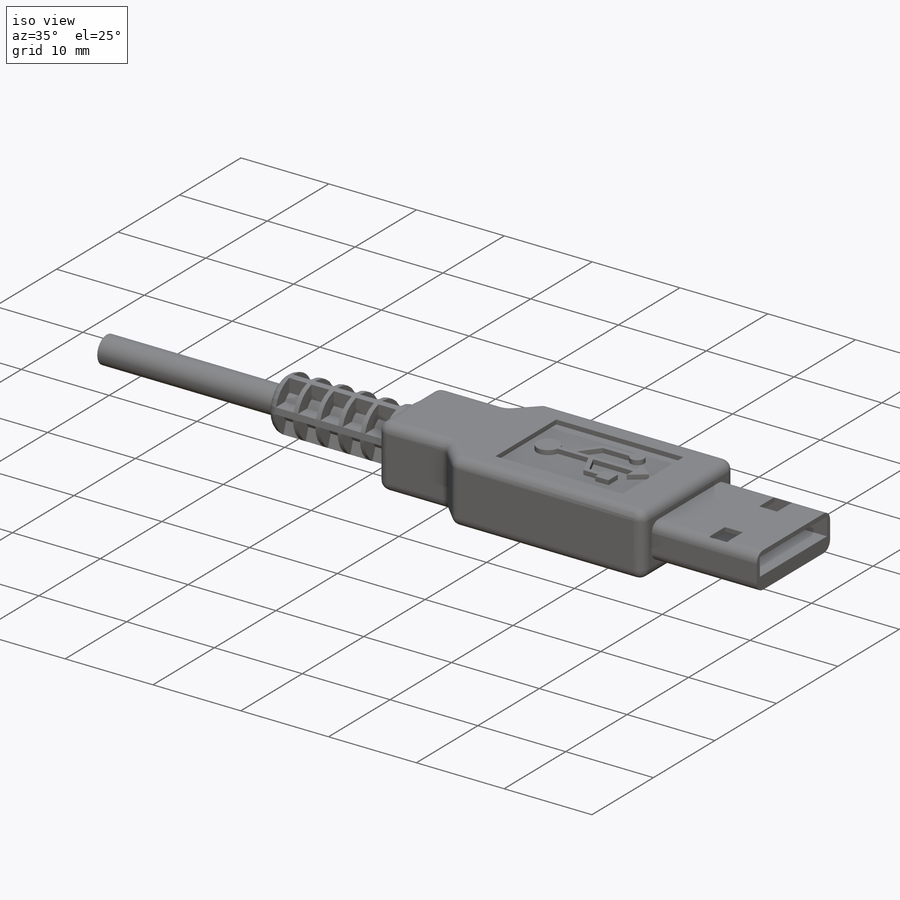
[diagram: iso view]
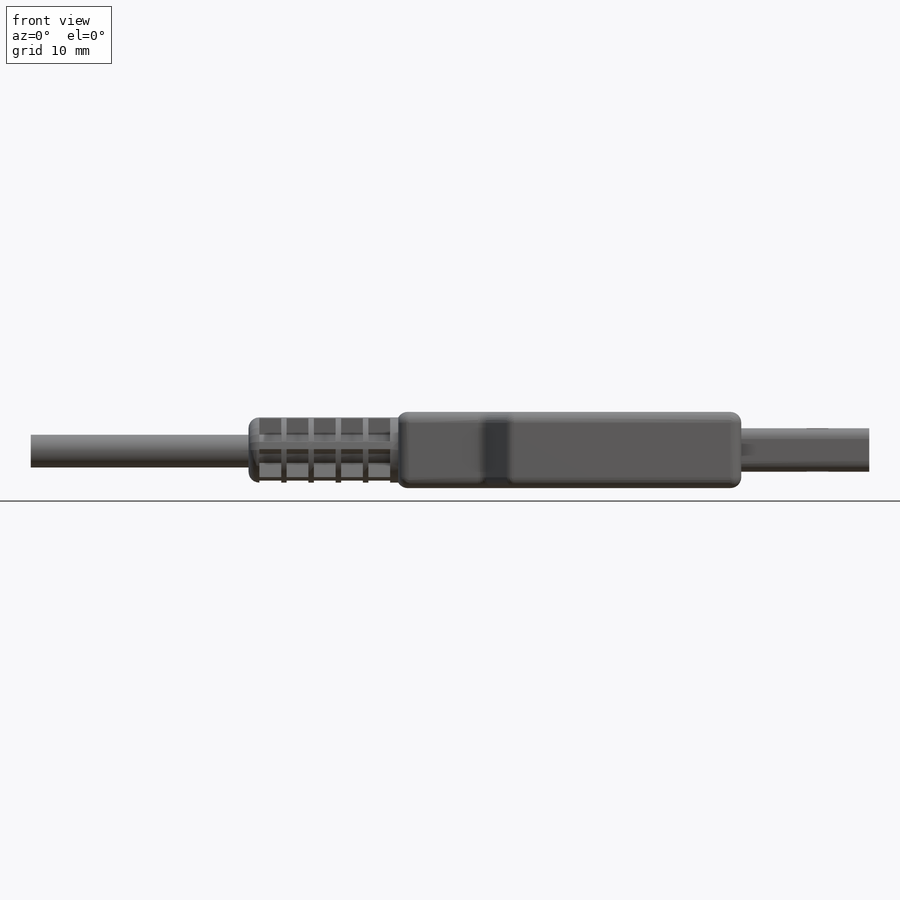
[diagram: front view]
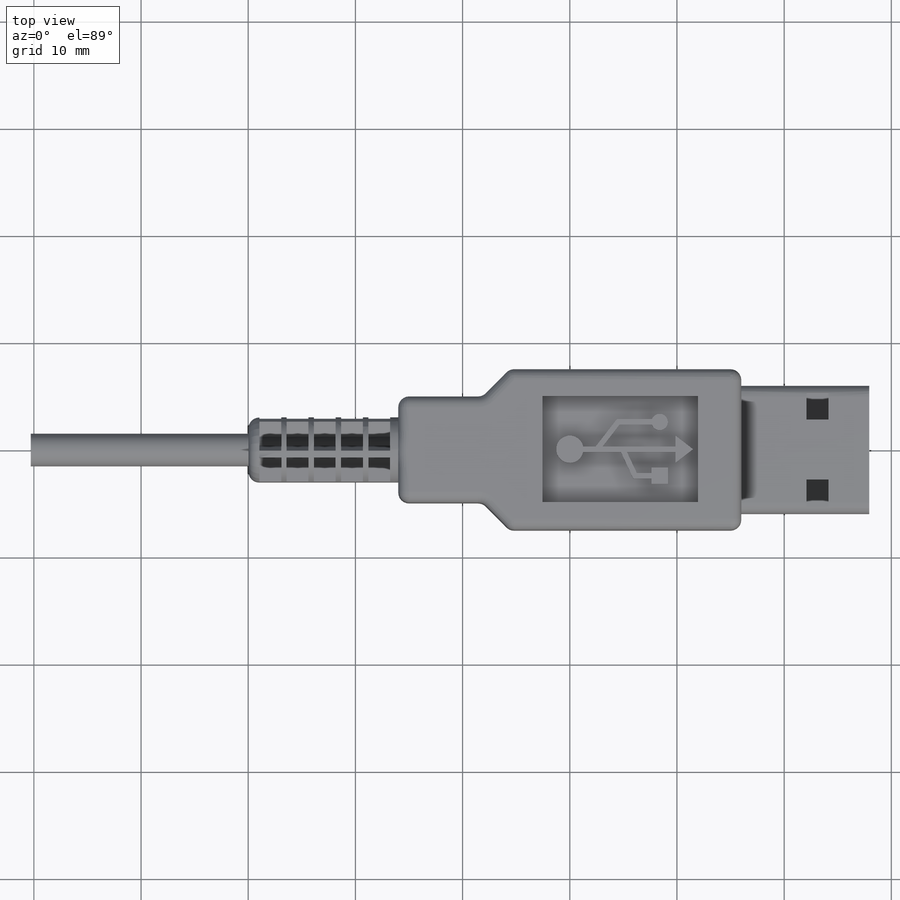
[diagram: top view]
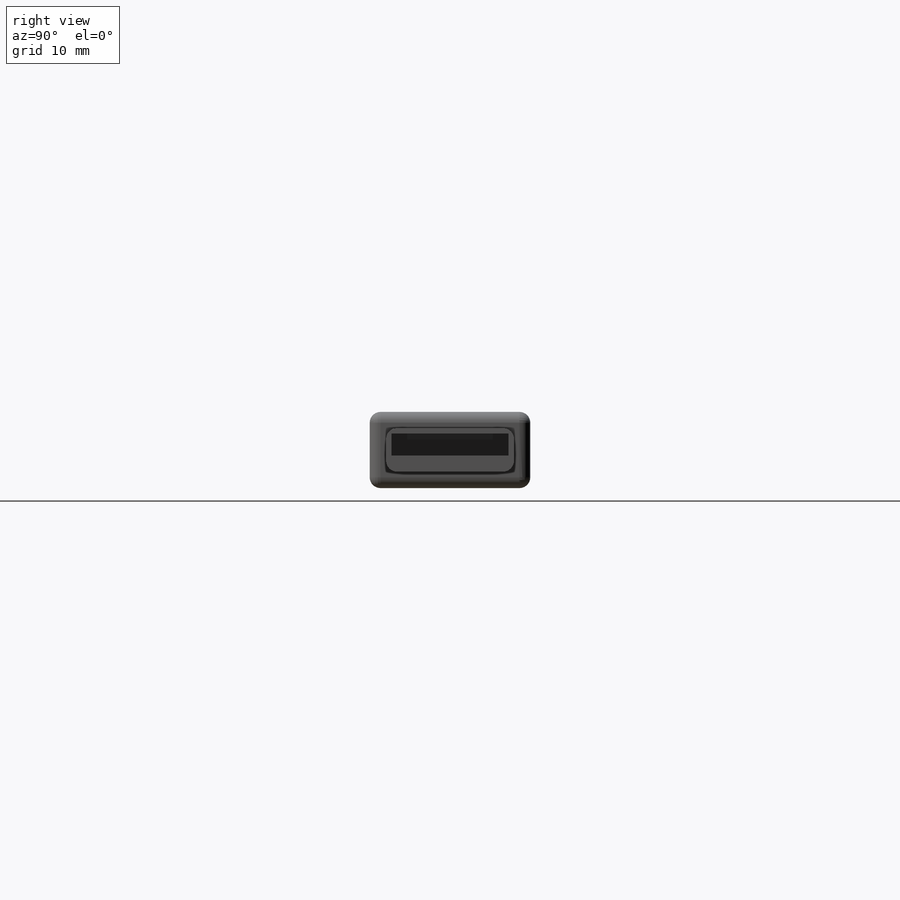
[diagram: right view]
SOLIDWORKS PART (.sldprt)
format: sldprt  version: not decoded by parser v0  size: 746,496 bytes
history: native  units: mm
features: sketch x11, extrude x7, cut_extrude x4, fillet x4, material x1, pattern_linear x1, pattern_circular x1 (+11 scaffold rows collapsed)
feature tree (40):
  scaffold x11  (default folders/planes/origin — collapsed)
  material  "Material <not specified>"
  sketch  "Sketch1"  dims[D1=14.986mm D2=32.004mm]
  extrude  "Boss-Extrude1"  Depth=7.112mm
  sketch  "Sketch2"  dims[c1.D1=2.54mm c2.D1=~149.732199deg c3.D1=7.874mm c4.D1=135.0deg]
  cut_extrude  "Cut-Extrude1"  [1 undecoded]
  sketch  "Sketch3"  dims[D1=6.096mm]
  extrude  "Boss-Extrude2"  Depth=13.97mm
  sketch  "Sketch4"  dims[D1=3.048mm]
  extrude  "Boss-Extrude3"  Depth=20.32mm
  sketch  "Sketch5"  dims[D1=4.064mm D2=14.478mm D3=9.906mm]
  cut_extrude  "Cut-Extrude2"  Depth=0.508mm
  sketch  "Sketch6"  dims[c1.D1=2.54mm c1.D2=8.382mm c1.D3=1.524mm c1.D4=1.524mm c1.D5=8.382mm c2.D1=2.54mm c2.D2=2.54mm]
  extrude  "Boss-Extrude4"  [1 undecoded]
  sketch  "Sketch7"  dims[D1=0.254mm D2=0.254mm]
  extrude  "Boss-Extrude6"  [1 undecoded]
  sketch  "Sketch8"  dims[D1=11.938mm D2=4.064mm D3=0.508mm]
  extrude  "Boss-Extrude7"  Depth=11.938mm
  sketch  "Sketch9"  dims[D1=6.096mm D2=2.794mm D3=2.032mm D4=~2.532724mm]
  cut_extrude  "Cut-Extrude3"  [1 undecoded]
  sketch  "Sketch10"  dims[D1=1.016mm]
  extrude  "Boss-Extrude8"  [1 undecoded]
  fillet  "Fillet2"  Radius=1.016mm
  fillet  "Fillet3"  Radius=1.016mm
  fillet  "Fillet4"  Radius=1.016mm
  sketch  "Sketch11"  dims[D1=0.762mm D2=0.762mm]
  cut_extrude  "Cut-Extrude4"  Depth=2.032mm
  pattern_linear  "LPattern2"  Count1=5 Count2=1 Spacing1=2.54mm Spacing2=50mm
  pattern_circular  "CirPattern1"  Count=5 Angle=360deg
  fillet  "Fillet5"  Radius=1mm
decode coverage: 23 of 28 modeling features carry decoded parameters
note: ~ marks probable driven/reference dimensions
note: 5 parameter values undecoded
summary: no parameter record found for 5 features
note: suppression state not decoded; provenance and decode notes live in map.json
